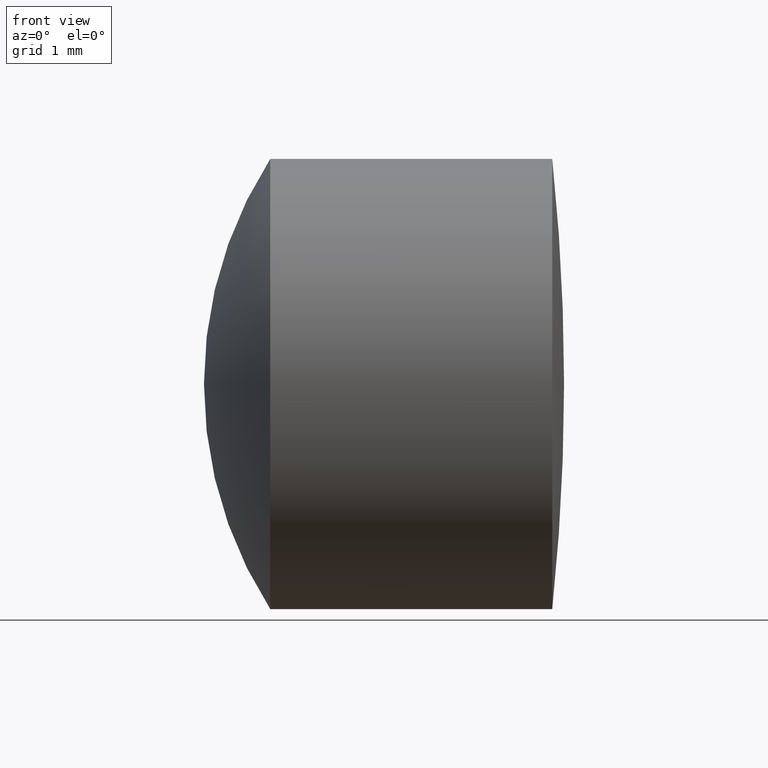
[diagram: clean part render]
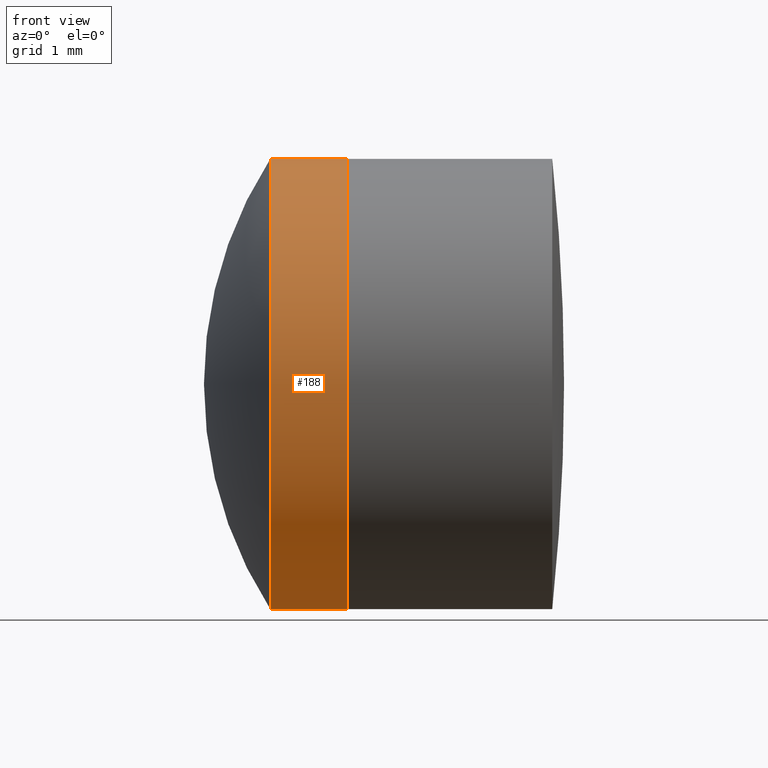
[diagram: same view with one face highlighted and labeled with its STEP entity id]
A machine part, front view. The second image highlights one B-rep face of the part: STEP entity #188.
In plain terms, the highlighted cylindrical surface (partial cylindrical patch) has radius 2.5 mm, axis along (-1, -0, -0).
Its self-contained STEP definition (entity closure, byte-faithful):
#3 = EDGE_CURVE ( 'NONE', #171, #232, #23, .T. ) ;
#14 = DIRECTION ( 'NONE',  ( 0.0000000000000000000, 0.0000000000000000000, 1.000000000000000000 ) ) ;
#21 = ORIENTED_EDGE ( 'NONE', *, *, #337, .F. ) ;
#23 = CIRCLE ( 'NONE', #296, 2.499999999999999600 ) ;
#27 = CARTESIAN_POINT ( 'NONE',  ( -0.8160621761658039000, 3.061616997868382600E-016, -2.499999999999999600 ) ) ;
#28 = ORIENTED_EDGE ( 'NONE', *, *, #261, .T. ) ;
#30 = DIRECTION ( 'NONE',  ( -1.000000000000000000, -0.0000000000000000000, -0.0000000000000000000 ) ) ;
#37 = DIRECTION ( 'NONE',  ( 0.0000000000000000000, 0.0000000000000000000, 1.000000000000000000 ) ) ;
#50 = ORIENTED_EDGE ( 'NONE', *, *, #345, .T. ) ;
#52 = VERTEX_POINT ( 'NONE', #168 ) ;
#63 = CARTESIAN_POINT ( 'NONE',  ( 1.479348394177700100, 0.0000000000000000000, 2.500000000000000000 ) ) ;
#64 = VERTEX_POINT ( 'NONE', #63 ) ;
#70 = CYLINDRICAL_SURFACE ( 'NONE', #71, 2.499999999999999600 ) ;
#71 = AXIS2_PLACEMENT_3D ( 'NONE', #302, #97, #334 ) ;
#80 = CARTESIAN_POINT ( 'NONE',  ( 0.6227680392050399800, 0.0000000000000000000, 0.0000000000000000000 ) ) ;
#82 = VECTOR ( 'NONE', #305, 1000.000000000000000 ) ;
#90 = CARTESIAN_POINT ( 'NONE',  ( 0.6227680392050400900, 0.0000000000000000000, -2.499999999999999600 ) ) ;
#91 = CARTESIAN_POINT ( 'NONE',  ( 1.479348394177700100, 0.0000000000000000000, 0.0000000000000000000 ) ) ;
#97 = DIRECTION ( 'NONE',  ( -1.000000000000000000, -0.0000000000000000000, -0.0000000000000000000 ) ) ;
#110 = ORIENTED_EDGE ( 'NONE', *, *, #3, .F. ) ;
#118 = AXIS2_PLACEMENT_3D ( 'NONE', #91, #30, #14 ) ;
#140 = CARTESIAN_POINT ( 'NONE',  ( 0.6227680392050400900, -3.061616997868382600E-016, 2.499999999999999600 ) ) ;
#146 = DIRECTION ( 'NONE',  ( -1.000000000000000000, -0.0000000000000000000, -0.0000000000000000000 ) ) ;
#148 = CARTESIAN_POINT ( 'NONE',  ( -0.8160621761658039000, 0.0000000000000000000, 2.499999999999999600 ) ) ;
#152 = EDGE_LOOP ( 'NONE', ( #21, #50, #28, #110 ) ) ;
#168 = CARTESIAN_POINT ( 'NONE',  ( 1.479348394177700100, 3.061616997868383100E-016, -2.500000000000000000 ) ) ;
#171 = VERTEX_POINT ( 'NONE', #90 ) ;
#180 = DIRECTION ( 'NONE',  ( -1.000000000000000000, -0.0000000000000000000, -0.0000000000000000000 ) ) ;
#187 = VECTOR ( 'NONE', #180, 1000.000000000000000 ) ;
#188 = ADVANCED_FACE ( 'NONE', ( #342 ), #70, .T. ) ;
#228 = CIRCLE ( 'NONE', #118, 2.500000000000000000 ) ;
#232 = VERTEX_POINT ( 'NONE', #140 ) ;
#260 = LINE ( 'NONE', #27, #187 ) ;
#261 = EDGE_CURVE ( 'NONE', #64, #232, #274, .T. ) ;
#274 = LINE ( 'NONE', #148, #82 ) ;
#296 = AXIS2_PLACEMENT_3D ( 'NONE', #80, #146, #37 ) ;
#302 = CARTESIAN_POINT ( 'NONE',  ( -0.8160621761658039000, 0.0000000000000000000, 0.0000000000000000000 ) ) ;
#305 = DIRECTION ( 'NONE',  ( -1.000000000000000000, -0.0000000000000000000, -0.0000000000000000000 ) ) ;
#334 = DIRECTION ( 'NONE',  ( 0.0000000000000000000, 0.0000000000000000000, 1.000000000000000000 ) ) ;
#337 = EDGE_CURVE ( 'NONE', #52, #171, #260, .T. ) ;
#342 = FACE_OUTER_BOUND ( 'NONE', #152, .T. ) ;
#345 = EDGE_CURVE ( 'NONE', #52, #64, #228, .T. ) ;